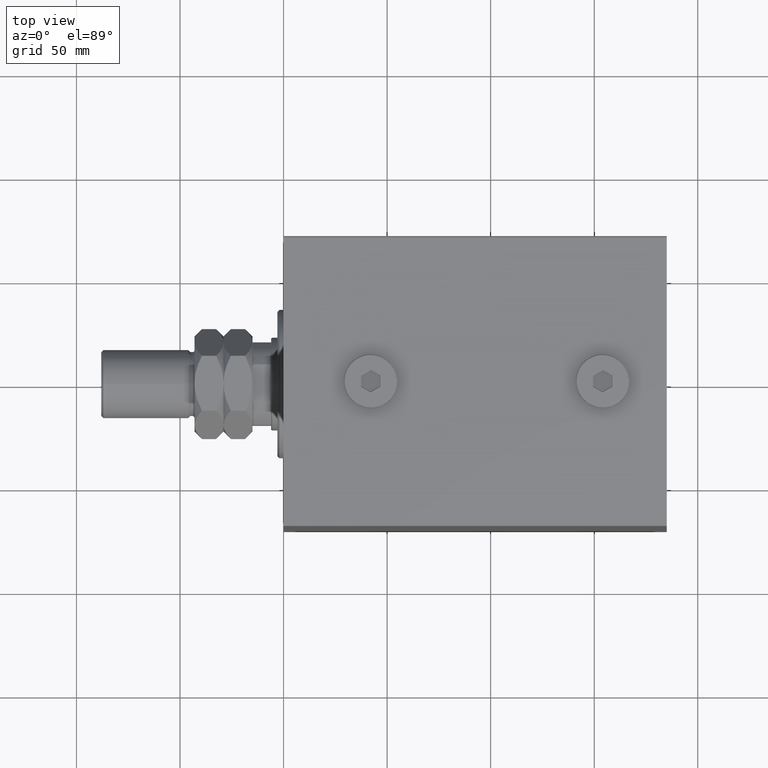
[diagram: clean part render]
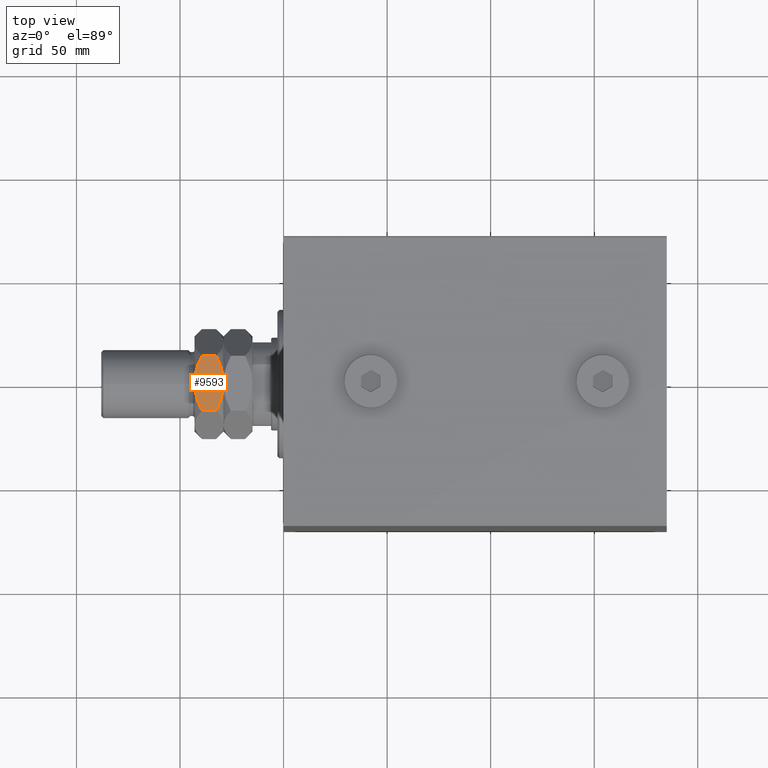
[diagram: same view with one face highlighted and labeled with its STEP entity id]
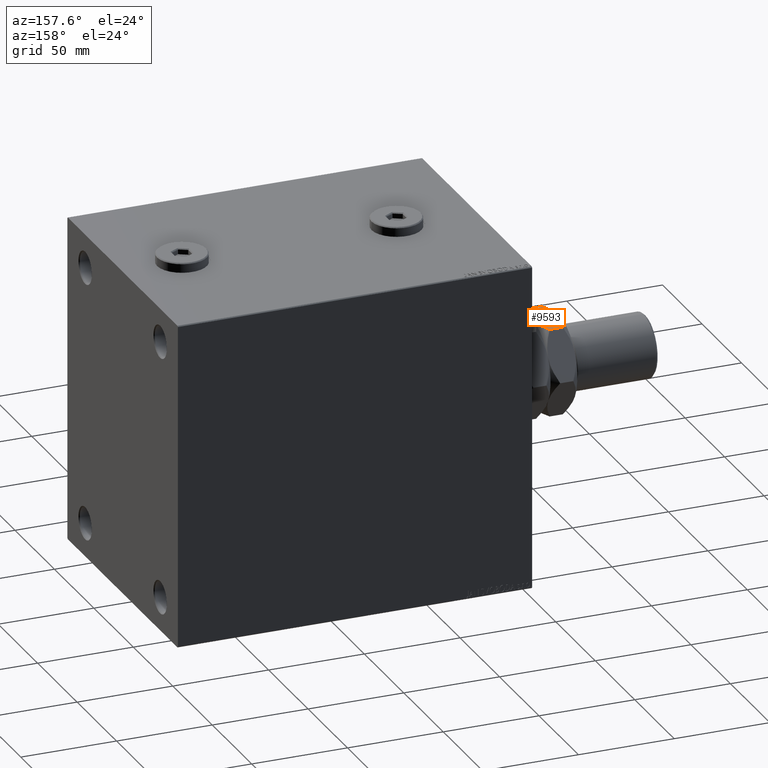
[diagram: same view with one face highlighted and labeled with its STEP entity id]
A machine part, top view. The second image highlights one B-rep face of the part: STEP entity #9593.
A second angle (auxiliary view) of the same face is appended — the face is thin or edge-on in the first view.
In plain terms, the highlighted planar face has unit normal (0, 0, -1).
Its self-contained STEP definition (entity closure, byte-faithful):
#1402 = EDGE_CURVE ( 'NONE', #25054, #38806, #16315, .T. ) ;
#1811 = CARTESIAN_POINT ( 'NONE',  ( 23.00000000000000000, -9.038140464506012606, 26.29329459371818345 ) ) ;
#2467 = CARTESIAN_POINT ( 'NONE',  ( 23.00000000000000000, -13.27905619136138959, 28.00000000000000000 ) ) ;
#2757 = CARTESIAN_POINT ( 'NONE',  ( 22.99999999999999289, 2.327345773459494005, 27.88976552227909878 ) ) ;
#2852 = EDGE_CURVE ( 'NONE', #15399, #35754, #20446, .T. ) ;
#3224 = CARTESIAN_POINT ( 'NONE',  ( 23.00000000000000711, -12.24912306375521531, 17.04314581891969382 ) ) ;
#3828 = B_SPLINE_CURVE_WITH_KNOTS ( 'NONE', 3,
 ( #27691, #45424, #12581, #27210, #1811, #16409, #31040, #9466, #25032, #35136 ),
 .UNSPECIFIED., .F., .F.,
 ( 4, 2, 2, 2, 4 ),
 ( 0.03391842154671734916, 0.03738166515001972723, 0.03911328695167091973, 0.04084490875332210530, 0.04777139595992686838 ),
 .UNSPECIFIED. ) ;
#6144 = ORIENTED_EDGE ( 'NONE', *, *, #13928, .F. ) ;
#6272 = EDGE_CURVE ( 'NONE', #35754, #25054, #19659, .T. ) ;
#6849 = ORIENTED_EDGE ( 'NONE', *, *, #6272, .F. ) ;
#7759 = EDGE_CURVE ( 'NONE', #43058, #38806, #30238, .T. ) ;
#8952 = CARTESIAN_POINT ( 'NONE',  ( 22.99999999999999645, 0.000000000000000000, 14.00000000000000000 ) ) ;
#9049 = CARTESIAN_POINT ( 'NONE',  ( 23.00000000000000000, -13.27905619136138782, 17.55811238272277564 ) ) ;
#9224 = CARTESIAN_POINT ( 'NONE',  ( 23.00000000000000355, 9.037287856520077156, 26.30796566528420399 ) ) ;
#9372 = CARTESIAN_POINT ( 'NONE',  ( 23.00000000000000000, -13.27905619136138782, 17.55811238272277564 ) ) ;
#9425 = CARTESIAN_POINT ( 'NONE',  ( 22.99999999999999289, 12.24963129209448276, 17.04339993308932222 ) ) ;
#9466 = CARTESIAN_POINT ( 'NONE',  ( 23.00000000000000711, -4.604003285773378806, 27.64082713328069119 ) ) ;
#9593 = ADVANCED_FACE ( 'NONE', ( #20671 ), #35314, .F. ) ;
#10393 = CARTESIAN_POINT ( 'NONE',  ( 23.00000000000000355, -4.611258391204995810, 14.43061535182026667 ) ) ;
#12025 = CARTESIAN_POINT ( 'NONE',  ( 23.00000000000000000, -13.27905619136138959, 28.00000000000000000 ) ) ;
#12581 = CARTESIAN_POINT ( 'NONE',  ( 22.99999999999999645, -11.20010744839417427, 25.43691701641144221 ) ) ;
#12783 = CARTESIAN_POINT ( 'NONE',  ( 22.99999999999999289, 9.585014738077491714, 15.91244084231266420 ) ) ;
#12885 = CARTESIAN_POINT ( 'NONE',  ( 23.00000000000000000, -2.327345773459499334, 14.11023447772089945 ) ) ;
#13061 = CARTESIAN_POINT ( 'NONE',  ( 23.00000000000000000, 5.732845801352522308, 27.32003707801577619 ) ) ;
#13132 = CARTESIAN_POINT ( 'NONE',  ( 23.00000000000000355, -11.19584287463890959, 16.56112058300224632 ) ) ;
#13816 = B_SPLINE_CURVE_WITH_KNOTS ( 'NONE', 3,
 ( #24566, #24796, #35373, #2757, #20479, #38960, #13061, #31284, #9224, #45894, #28159, #42540 ),
 .UNSPECIFIED., .F., .F.,
 ( 4, 2, 2, 2, 2, 4 ),
 ( 0.04777139595992686838, 0.04949914554651193427, 0.05122689513309699322, 0.05468239430626712499, 0.05813789347943724983, 0.06159339265260738161 ),
 .UNSPECIFIED. ) ;
#13928 = EDGE_CURVE ( 'NONE', #43058, #37445, #3828, .T. ) ;
#14554 = ORIENTED_EDGE ( 'NONE', *, *, #1402, .F. ) ;
#15399 = VERTEX_POINT ( 'NONE', #30890 ) ;
#15670 = CARTESIAN_POINT ( 'NONE',  ( 23.00000000000000000, 13.27905619136138959, 28.00000000000000000 ) ) ;
#16137 = CARTESIAN_POINT ( 'NONE',  ( 23.00000000000001066, 7.937214062685167271, 15.32555602763360092 ) ) ;
#16315 = B_SPLINE_CURVE_WITH_KNOTS ( 'NONE', 3,
 ( #45968, #38315, #43245, #12885, #27512, #10393, #39658, #36071, #18051, #13132, #3224, #9049 ),
 .UNSPECIFIED., .F., .F.,
 ( 4, 2, 2, 2, 2, 4 ),
 ( 0.04777139595992687532, 0.04949914554651194121, 0.05122689513309700016, 0.05468239430626712499, 0.05813789347943724983, 0.06159339265260737467 ),
 .UNSPECIFIED. ) ;
#16409 = CARTESIAN_POINT ( 'NONE',  ( 23.00000000000000000, -7.937214062685161942, 26.67444397236640086 ) ) ;
#16895 = CARTESIAN_POINT ( 'NONE',  ( 23.00000000000000000, -13.27905619136138959, 24.44188761727722792 ) ) ;
#17071 = DIRECTION ( 'NONE',  ( -1.000000000000000000, 0.000000000000000000, 0.000000000000000000 ) ) ;
#18051 = CARTESIAN_POINT ( 'NONE',  ( 23.00000000000000355, -9.037287856520078932, 15.69203433471579778 ) ) ;
#18991 = ORIENTED_EDGE ( 'NONE', *, *, #2852, .F. ) ;
#19500 = DIRECTION ( 'NONE',  ( -0.000000000000000000, -0.000000000000000000, -1.000000000000000000 ) ) ;
#19659 = B_SPLINE_CURVE_WITH_KNOTS ( 'NONE', 3,
 ( #45861, #9425, #31730, #12783, #31497, #16137, #30761, #35096, #24050, #8952 ),
 .UNSPECIFIED., .F., .F.,
 ( 4, 2, 2, 2, 4 ),
 ( 0.03391842154671734916, 0.03738166515001972723, 0.03911328695167091973, 0.04084490875332210530, 0.04777139595992687532 ),
 .UNSPECIFIED. ) ;
#20446 = LINE ( 'NONE', #15670, #46386 ) ;
#20479 = CARTESIAN_POINT ( 'NONE',  ( 23.00000000000000000, 2.901718448039539044, 27.82452852895291429 ) ) ;
#20671 = FACE_OUTER_BOUND ( 'NONE', #41253, .T. ) ;
#21051 = CARTESIAN_POINT ( 'NONE',  ( 22.99999999999999645, 0.000000000000000000, 14.00000000000000000 ) ) ;
#24050 = CARTESIAN_POINT ( 'NONE',  ( 23.00000000000000355, 2.332866569036886606, 14.00000000000000355 ) ) ;
#24566 = CARTESIAN_POINT ( 'NONE',  ( 22.99999999999999645, 0.000000000000000000, 28.00000000000000000 ) ) ;
#24796 = CARTESIAN_POINT ( 'NONE',  ( 23.00000000000000711, 0.5819124658698872077, 28.00000000000000000 ) ) ;
#25032 = CARTESIAN_POINT ( 'NONE',  ( 23.00000000000000711, -2.332866569036887938, 27.99999999999999645 ) ) ;
#25054 = VERTEX_POINT ( 'NONE', #21051 ) ;
#27210 = CARTESIAN_POINT ( 'NONE',  ( 22.99999999999999289, -9.585014738077486385, 26.08755915768734468 ) ) ;
#27512 = CARTESIAN_POINT ( 'NONE',  ( 23.00000000000000355, -2.901718448039537712, 14.17547147104708571 ) ) ;
#27643 = CARTESIAN_POINT ( 'NONE',  ( 22.99999999999999645, 0.000000000000000000, 28.00000000000000000 ) ) ;
#27691 = CARTESIAN_POINT ( 'NONE',  ( 23.00000000000000000, -13.27905619136138959, 24.44188761727722792 ) ) ;
#28159 = CARTESIAN_POINT ( 'NONE',  ( 23.00000000000000711, 12.24912306375522242, 24.95685418108031328 ) ) ;
#30238 = LINE ( 'NONE', #12025, #45021 ) ;
#30761 = CARTESIAN_POINT ( 'NONE',  ( 23.00000000000000711, 7.384104261058126895, 15.15038048687418559 ) ) ;
#30890 = CARTESIAN_POINT ( 'NONE',  ( 23.00000000000000000, 13.27905619136138959, 24.44188761727722436 ) ) ;
#31040 = CARTESIAN_POINT ( 'NONE',  ( 22.99999999999999645, -7.384104261058114460, 26.84961951312581618 ) ) ;
#31284 = CARTESIAN_POINT ( 'NONE',  ( 22.99999999999999645, 7.945847288453418145, 26.68926960916466129 ) ) ;
#31497 = CARTESIAN_POINT ( 'NONE',  ( 23.00000000000000355, 9.038140464506014382, 15.70670540628181477 ) ) ;
#31655 = ORIENTED_EDGE ( 'NONE', *, *, #43046, .F. ) ;
#31730 = CARTESIAN_POINT ( 'NONE',  ( 23.00000000000000000, 11.20010744839417782, 16.56308298358856135 ) ) ;
#33769 = DIRECTION ( 'NONE',  ( 0.000000000000000000, 0.000000000000000000, 1.000000000000000000 ) ) ;
#34674 = CARTESIAN_POINT ( 'NONE',  ( 23.00000000000000000, 13.27905619136138959, 17.55811238272277564 ) ) ;
#35096 = CARTESIAN_POINT ( 'NONE',  ( 23.00000000000000355, 4.604003285773385024, 14.35917286671931059 ) ) ;
#35136 = CARTESIAN_POINT ( 'NONE',  ( 22.99999999999999645, 0.000000000000000000, 28.00000000000000000 ) ) ;
#35314 = PLANE ( 'NONE',  #36683 ) ;
#35373 = CARTESIAN_POINT ( 'NONE',  ( 23.00000000000000000, 1.168850493887465758, 27.97756288437166461 ) ) ;
#35754 = VERTEX_POINT ( 'NONE', #34674 ) ;
#36071 = CARTESIAN_POINT ( 'NONE',  ( 23.00000000000000355, -7.945847288453419921, 15.31073039083534226 ) ) ;
#36683 = AXIS2_PLACEMENT_3D ( 'NONE', #2467, #17071, #33769 ) ;
#37445 = VERTEX_POINT ( 'NONE', #27643 ) ;
#38315 = CARTESIAN_POINT ( 'NONE',  ( 23.00000000000001066, -0.5819124658698887620, 14.00000000000000711 ) ) ;
#38806 = VERTEX_POINT ( 'NONE', #9372 ) ;
#38960 = CARTESIAN_POINT ( 'NONE',  ( 23.00000000000000355, 4.611258391204997586, 27.56938464817973511 ) ) ;
#39658 = CARTESIAN_POINT ( 'NONE',  ( 23.00000000000000711, -5.732845801352522308, 14.67996292198422736 ) ) ;
#41253 = EDGE_LOOP ( 'NONE', ( #6849, #18991, #31655, #6144, #43955, #14554 ) ) ;
#41283 = DIRECTION ( 'NONE',  ( -0.000000000000000000, -0.000000000000000000, -1.000000000000000000 ) ) ;
#42540 = CARTESIAN_POINT ( 'NONE',  ( 23.00000000000000000, 13.27905619136138959, 24.44188761727722436 ) ) ;
#43046 = EDGE_CURVE ( 'NONE', #37445, #15399, #13816, .T. ) ;
#43058 = VERTEX_POINT ( 'NONE', #16895 ) ;
#43245 = CARTESIAN_POINT ( 'NONE',  ( 23.00000000000000000, -1.168850493887471087, 14.02243711562833184 ) ) ;
#43955 = ORIENTED_EDGE ( 'NONE', *, *, #7759, .T. ) ;
#45021 = VECTOR ( 'NONE', #41283, 1000.000000000000000 ) ;
#45424 = CARTESIAN_POINT ( 'NONE',  ( 23.00000000000000000, -12.24963129209447565, 24.95660006691067778 ) ) ;
#45861 = CARTESIAN_POINT ( 'NONE',  ( 23.00000000000000000, 13.27905619136138959, 17.55811238272277564 ) ) ;
#45894 = CARTESIAN_POINT ( 'NONE',  ( 23.00000000000000355, 11.19584287463890782, 25.43887941699775368 ) ) ;
#45968 = CARTESIAN_POINT ( 'NONE',  ( 22.99999999999999645, 0.000000000000000000, 14.00000000000000000 ) ) ;
#46386 = VECTOR ( 'NONE', #19500, 1000.000000000000000 ) ;